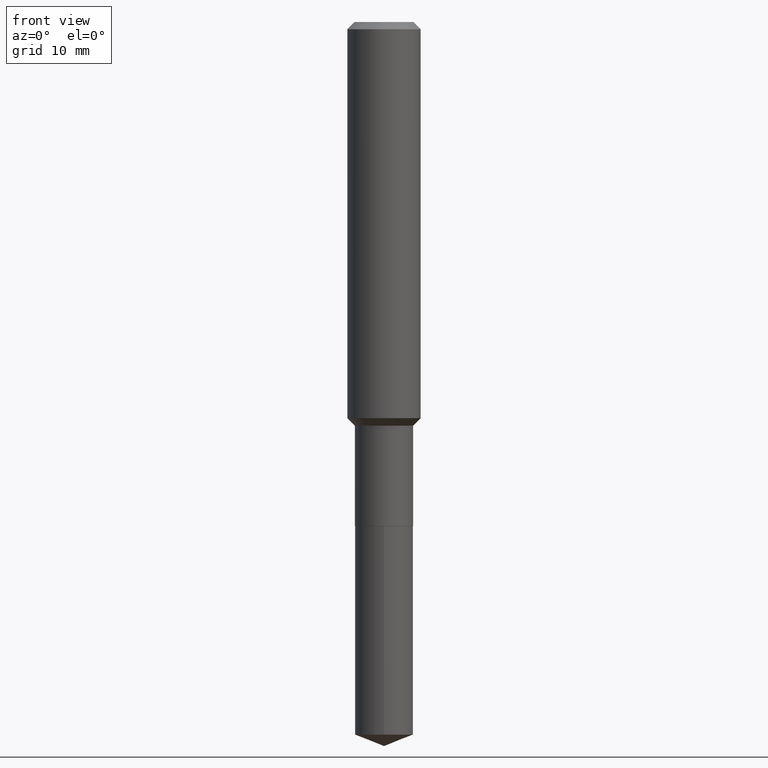
[diagram: clean part render]
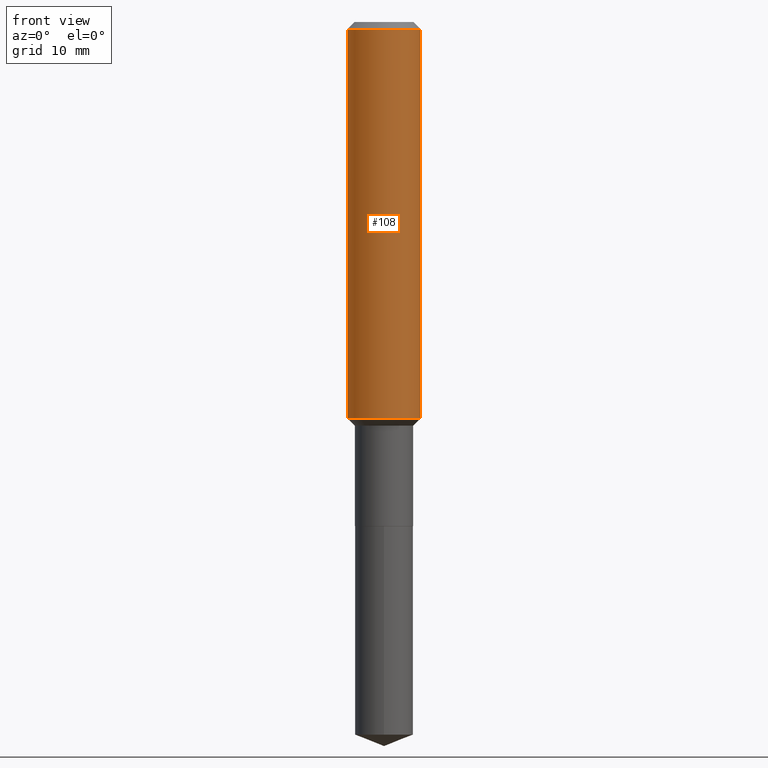
[diagram: same view with one face highlighted and labeled with its STEP entity id]
A machine part, front view. The second image highlights one B-rep face of the part: STEP entity #108.
In plain terms, the highlighted cylindrical surface (partial cylindrical patch) has radius 4.0005 mm, axis along (-0, 0, 1).
Its self-contained STEP definition (entity closure, byte-faithful):
#19 = AXIS2_PLACEMENT_3D ( 'NONE', #312, #236, #119 ) ;
#41 = AXIS2_PLACEMENT_3D ( 'NONE', #469, #390, #281 ) ;
#42 = CARTESIAN_POINT ( 'NONE',  ( 0.1575000000000000011, -1.209798283909146741E-15, -0.03150000000000018757 ) ) ;
#70 = ORIENTED_EDGE ( 'NONE', *, *, #351, .T. ) ;
#72 = DIRECTION ( 'NONE',  ( -2.445468806185136877E-29, 3.491481338843145188E-15, 1.000000000000000000 ) ) ;
#78 = ORIENTED_EDGE ( 'NONE', *, *, #269, .F. ) ;
#91 = CYLINDRICAL_SURFACE ( 'NONE', #19, 0.1575000000000000844 ) ;
#95 = CARTESIAN_POINT ( 'NONE',  ( 0.1575000000000001954, -7.040921267911083506E-15, -1.701600000000000001 ) ) ;
#108 = ADVANCED_FACE ( 'NONE', ( #271 ), #91, .T. ) ;
#119 = DIRECTION ( 'NONE',  ( 1.000000000000000000, -6.982962677686267499E-15, 4.876176775795936353E-29 ) ) ;
#135 = VECTOR ( 'NONE', #203, 39.37007874015748143 ) ;
#176 = VECTOR ( 'NONE', #72, 39.37007874015748143 ) ;
#203 = DIRECTION ( 'NONE',  ( -2.445468806185136877E-29, 3.491481338843145188E-15, 1.000000000000000000 ) ) ;
#228 = LINE ( 'NONE', #432, #135 ) ;
#231 = EDGE_CURVE ( 'NONE', #323, #317, #257, .T. ) ;
#236 = DIRECTION ( 'NONE',  ( -2.445468806185136597E-29, 3.491481338843145583E-15, 1.000000000000000000 ) ) ;
#245 = VERTEX_POINT ( 'NONE', #95 ) ;
#250 = CARTESIAN_POINT ( 'NONE',  ( 0.1575000000000000844, -1.099816621735587677E-15, 7.679978421878603638E-30 ) ) ;
#253 = VERTEX_POINT ( 'NONE', #425 ) ;
#257 = CIRCLE ( 'NONE', #41, 0.1575000000000000011 ) ;
#267 = DIRECTION ( 'NONE',  ( -2.445468806185136597E-29, 3.491481338843145583E-15, 1.000000000000000000 ) ) ;
#269 = EDGE_CURVE ( 'NONE', #253, #323, #228, .T. ) ;
#271 = FACE_OUTER_BOUND ( 'NONE', #358, .T. ) ;
#281 = DIRECTION ( 'NONE',  ( 1.000000000000000000, -6.982962677686265922E-15, 0.000000000000000000 ) ) ;
#288 = ORIENTED_EDGE ( 'NONE', *, *, #231, .F. ) ;
#291 = CARTESIAN_POINT ( 'NONE',  ( -0.1575000000000000011, -1.906438345352368955E-15, -0.03150000000000018757 ) ) ;
#303 = CIRCLE ( 'NONE', #391, 0.1575000000000001954 ) ;
#305 = DIRECTION ( 'NONE',  ( 1.000000000000000000, -6.982962677686265922E-15, 0.000000000000000000 ) ) ;
#312 = CARTESIAN_POINT ( 'NONE',  ( 0.000000000000000000, 0.000000000000000000, 0.000000000000000000 ) ) ;
#317 = VERTEX_POINT ( 'NONE', #42 ) ;
#318 = EDGE_CURVE ( 'NONE', #253, #245, #303, .T. ) ;
#323 = VERTEX_POINT ( 'NONE', #291 ) ;
#345 = CARTESIAN_POINT ( 'NONE',  ( 4.161209720604628507E-29, -5.941104646175496815E-15, -1.701600000000000001 ) ) ;
#351 = EDGE_CURVE ( 'NONE', #245, #317, #453, .T. ) ;
#358 = EDGE_LOOP ( 'NONE', ( #78, #439, #70, #288 ) ) ;
#390 = DIRECTION ( 'NONE',  ( -2.445468806185136597E-29, 3.491481338843145583E-15, 1.000000000000000000 ) ) ;
#391 = AXIS2_PLACEMENT_3D ( 'NONE', #345, #267, #305 ) ;
#425 = CARTESIAN_POINT ( 'NONE',  ( -0.1575000000000001954, -4.821999837353336845E-15, -1.701600000000000001 ) ) ;
#432 = CARTESIAN_POINT ( 'NONE',  ( -0.1575000000000000844, 1.119104808822158392E-15, -7.747322767151481189E-30 ) ) ;
#439 = ORIENTED_EDGE ( 'NONE', *, *, #318, .T. ) ;
#453 = LINE ( 'NONE', #250, #176 ) ;
#469 = CARTESIAN_POINT ( 'NONE',  ( 7.703226739483226095E-31, -1.099816621735597415E-16, -0.03150000000000018757 ) ) ;